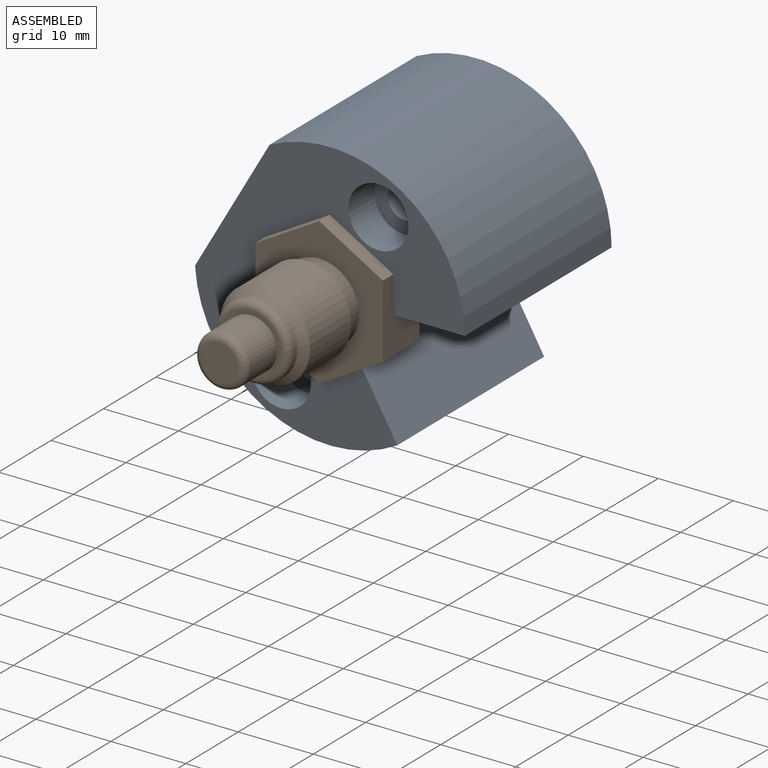
[diagram: assembled view]
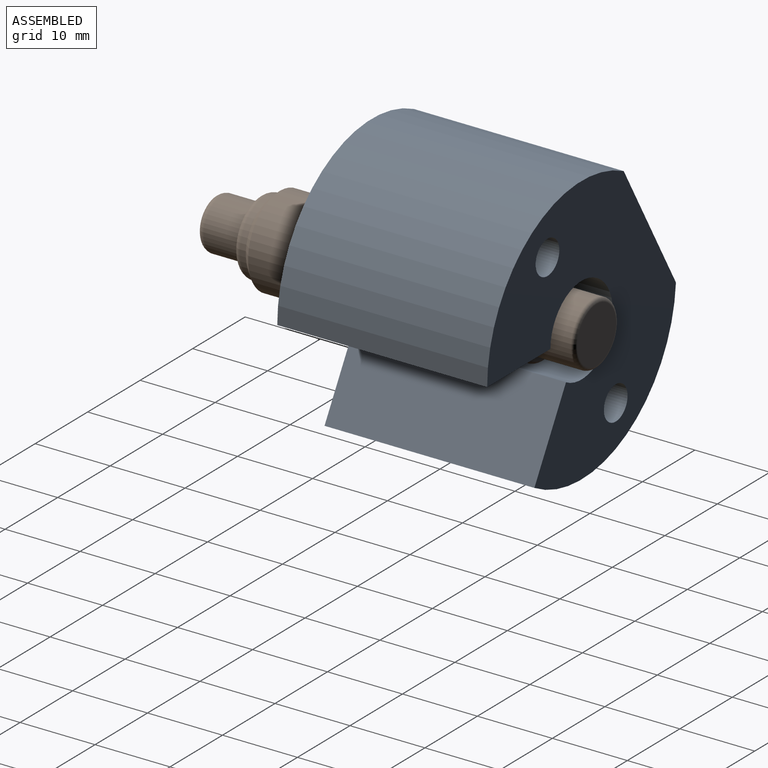
[diagram: assembled view, second angle]
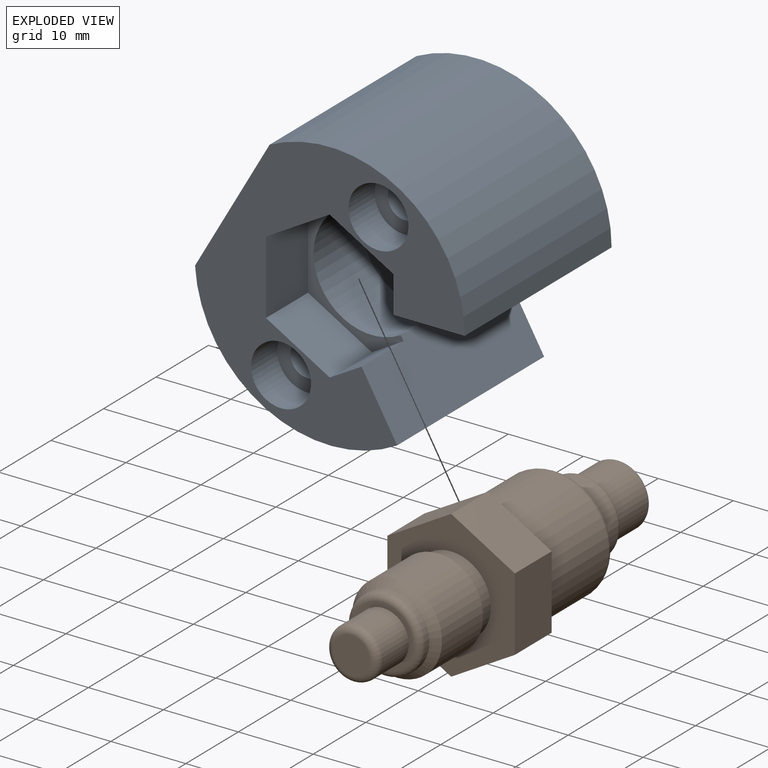
[diagram: exploded view]
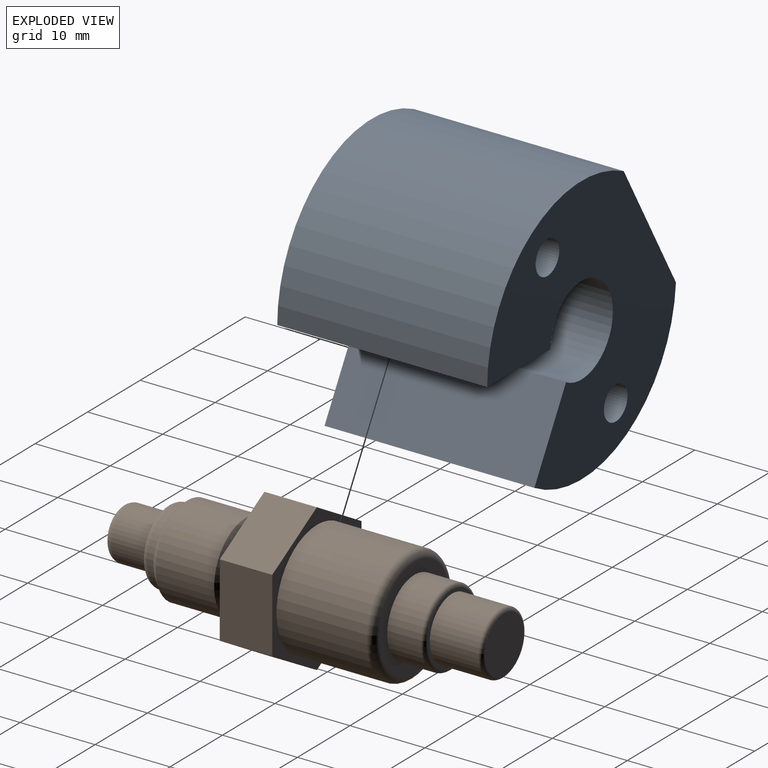
[diagram: exploded view, second angle]
ASSEMBLY  parts=2 mates=3
PART A: 23 faces, bbox 30.6x28x36 mm
  f0: cylinder r=2.25mm len=23mm, axis (0,1,0), area 325.2mm2, adj f6,f22
  f1: cylinder r=2.25mm len=23mm, axis (0,1,0), area 325.2mm2, adj f6,f20
  f2: cylinder r=7.75mm len=15.5mm, axis (0,-1,0), area 373.3mm2, adj f7,f8,f17,f18
  f3: cylinder r=5.95mm len=11.9mm, axis (0,1,0), area 336.5mm2, adj f6,f7,f17,f18
  f4: cylinder r=18mm len=30.59mm, axis (0,1,0), area 1024.3mm2, adj f5,f6,f10,f18
  f5: plane 36x30.59mm, normal (0,-1,0), area 498.6mm2, adj f4,f9,f10,f11,f12,f13,f14,f15
  f6: plane 36x30.59mm, normal (0,1,0), area 683.2mm2, adj f0,f1,f3,f4,f10,f11,f17,f18
  f7: plane 15.5x14.46mm, normal (0,-1,0), area 64.6mm2, adj f2,f3,f17,f18
  f8: plane 17.18x17mm, normal (0,-1,0), area 51.3mm2, adj f2,f9,f12,f13,f14,f15,f16,f17
  f9: plane 8x4.25mm, normal (-0.87,0,-0.5), area 39.3mm2, adj f5,f8,f12,f18
  f10: plane 28x19.9mm, normal (-1,0,0), area 557.2mm2, adj f4,f5,f6,f11
  f11: cylinder r=18mm len=30.59mm, axis (0,1,0), area 1024.3mm2, adj f5,f6,f10,f17
  f12: plane 9.82x8mm, normal (0,0,-1), area 78.5mm2, adj f5,f8,f9,f13
  f13: plane 8.5x8mm, normal (0.87,0,-0.5), area 78.5mm2, adj f5,f8,f12,f14
  f14: plane 8.5x8mm, normal (0.87,0,0.5), area 78.5mm2, adj f5,f8,f13,f15
  f15: plane 9.82x8mm, normal (0,0,1), area 78.5mm2, adj f5,f8,f14,f16
  f16: plane 8x4.25mm, normal (-0.87,0,0.5), area 39.3mm2, adj f5,f8,f15,f17
  f17: plane 28x10.44mm, normal (0.5,0,0.87), area 300.4mm2, adj f2,f3,f5,f6,f7,f8,f11,f16
  f18: plane 28x10.44mm, normal (0.5,0,-0.87), area 300.4mm2, adj f2,f3,f4,f5,f6,f7,f8,f9
  f19: cylinder r=4mm len=8mm, axis (0,-1,0), area 125.7mm2, adj f5,f20
  f20: plane 8x8mm, normal (0,-1,0), area 34.4mm2, adj f1,f19
  f21: cylinder r=4mm len=8mm, axis (0,-1,0), area 125.7mm2, adj f5,f22
  f22: plane 8x8mm, normal (0,-1,0), area 34.4mm2, adj f0,f21
PART B: 27 faces, bbox 17x51x19.6 mm
  f0: plane 8.5x7mm, normal (-0.5,0,0.87), area 68.7mm2, adj f1,f5,f6,f7
  f1: plane 9.82x7mm, normal (-1,0,0), area 68.7mm2, adj f0,f2,f6,f7
  f2: plane 8.5x7mm, normal (-0.5,0,-0.87), area 68.7mm2, adj f1,f3,f6,f7
  f3: plane 8.5x7mm, normal (0.5,0,-0.87), area 68.7mm2, adj f2,f4,f6,f7
  f4: plane 9.82x7mm, normal (1,0,0), area 68.7mm2, adj f3,f5,f6,f7
  f5: plane 8.5x7mm, normal (0.5,0,0.87), area 68.7mm2, adj f0,f4,f6,f7
  f6: plane 19.63x17mm, normal (0,-1,0), area 162mm2, adj f0,f1,f2,f3,f4,f5,f8
  f7: plane 19.63x17mm, normal (0,1,0), area 64mm2, adj f0,f1,f2,f3,f4,f5,f18
  f8: cylinder r=5.3mm len=10.6mm, axis (0,1,0), area 59.9mm2, adj f6,f16
  f9: cylinder r=6mm len=12mm, axis (0,1,0), area 294.1mm2, adj f16,f17
  f10: cylinder r=5mm len=10mm, axis (0,1,0), area 25.1mm2, adj f15,f17
  f11: plane 8.2x8.2mm, normal (0,-1,0), area 15.4mm2, adj f12,f15
  f12: cylinder r=3.45mm len=6.9mm, axis (0,1,0), area 108.4mm2, adj f11,f14
  f13: plane 4.9x4.9mm, normal (0,-1,0), area 18.9mm2, adj f14
  f14: torus R=2.45mm, axis (0,-1,0), area 30.5mm2, adj f12,f13
  f15: torus R=4.1mm, axis (0,-1,0), area 41.5mm2, adj f10,f11
  f16: cone r=6mm half-angle=45deg, axis (0,-1,0), area 35.1mm2, adj f8,f9
  f17: cone r=5mm half-angle=45deg, axis (0,1,0), area 48.9mm2, adj f9,f10
  f18: cylinder r=7.7mm len=15.4mm, axis (0,-1,0), area 580.6mm2, adj f7,f22
  f19: plane 13.4x13.4mm, normal (0,1,0), area 57.7mm2, adj f20,f22
  f20: cylinder r=5.15mm len=10.3mm, axis (0,-1,0), area 145.6mm2, adj f19,f26
  f21: plane 9.3x9.3mm, normal (0,1,0), area 12.5mm2, adj f23,f26
  f22: torus R=6.7mm, axis (0,1,0), area 72.4mm2, adj f18,f19
  f23: cylinder r=4.2mm len=8.4mm, axis (0,-1,0), area 171.5mm2, adj f21,f25
  f24: plane 7.4x7.4mm, normal (0,1,0), area 43mm2, adj f25
  f25: torus R=3.7mm, axis (0,1,0), area 19.8mm2, adj f23,f24
  f26: torus R=4.65mm, axis (0,1,0), area 24.5mm2, adj f20,f21
PLACE A rot(axis=(0,1,0),30deg) t=(24.6,-6.87,-52.32)mm
PLACE B rot(axis=(0,1,0),60deg) t=(24.6,-29.87,-52.32)mm
MATE parallel B.f1 <-> A.f13  axis (-0.5,0,0.87) through (24.6,-33.37,-42.5)mm
MATE parallel A.f8 <-> B.f7  axis (0,-1,0) through (24.6,-26.87,-42.5)mm
MATE parallel B.f2 <-> A.f14  axis (-1,0,0) through (16.1,-33.37,-52.32)mm
